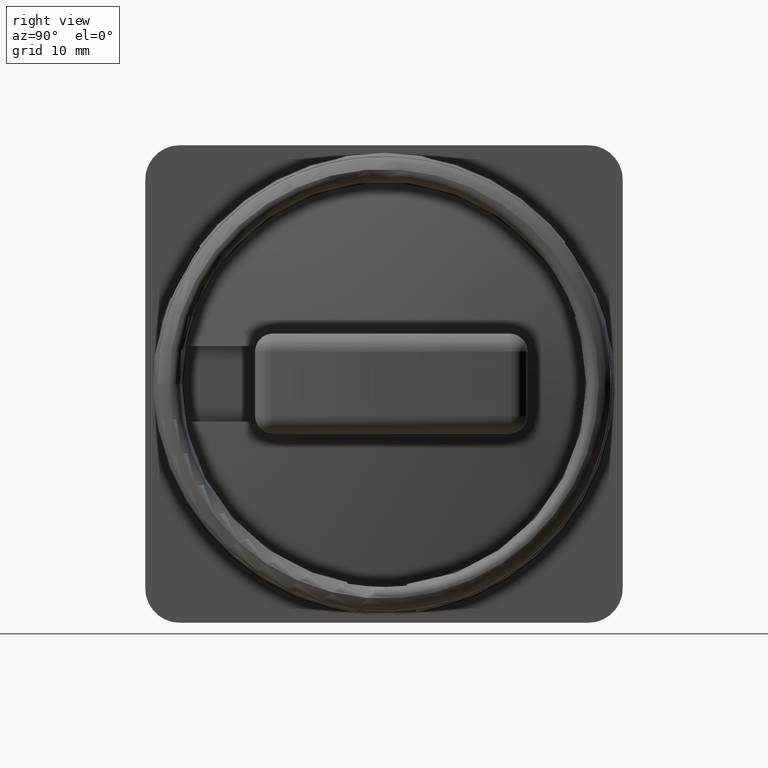
[diagram: clean part render]
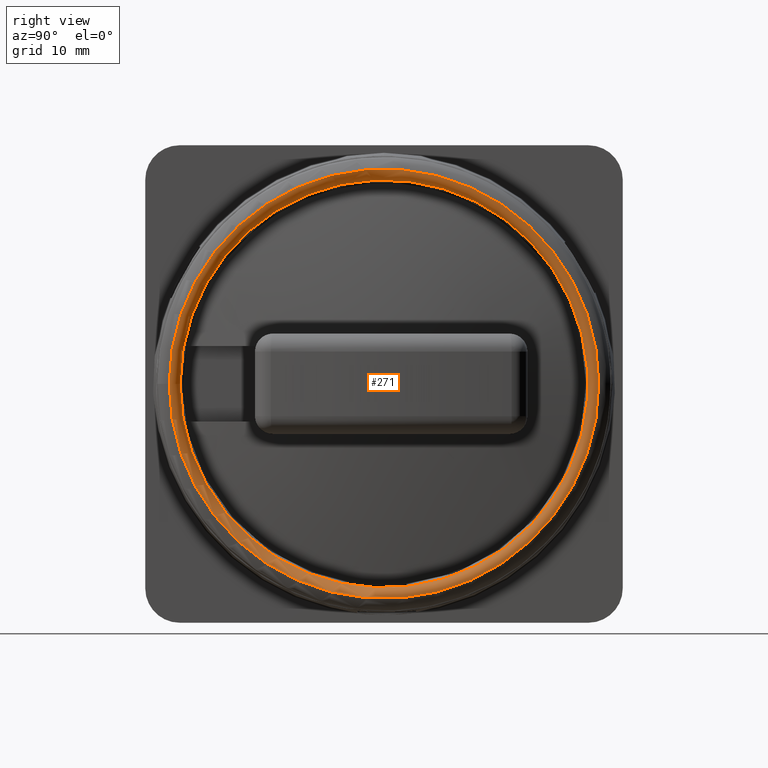
[diagram: same view with one face highlighted and labeled with its STEP entity id]
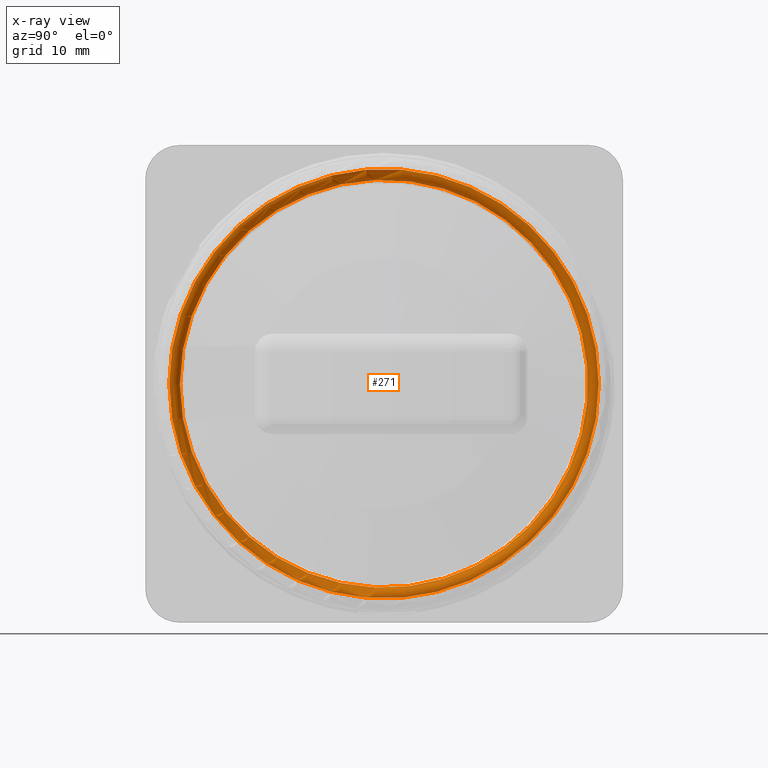
[diagram: x-ray of the same camera — body ghosted, the highlighted face saturated]
A machine part, right view. The second image highlights one B-rep face of the part: STEP entity #271.
The next image is the same camera in x-ray: the body ghosted, the highlighted face saturated — about 0% of this face is hidden behind the body in this view.
In plain terms, the highlighted toroidal blend (fillet) surface has major radius 23.7494 mm and minor (blend) radius 1 mm.
Its self-contained STEP definition (entity closure, byte-faithful):
#36=TOROIDAL_SURFACE('',#1714,23.7493908270191,0.999999999999999);
#271=ADVANCED_FACE('',(#381,#382),#36,.T.);
#381=FACE_BOUND('',#470,.T.);
#382=FACE_BOUND('',#471,.T.);
#470=EDGE_LOOP('',(#928));
#471=EDGE_LOOP('',(#929));
#558=CIRCLE('',#1698,22.75);
#565=CIRCLE('',#1712,23.9634988975199);
#928=ORIENTED_EDGE('',*,*,#1375,.T.);
#929=ORIENTED_EDGE('',*,*,#1384,.F.);
#1169=VERTEX_POINT('',#2961);
#1178=VERTEX_POINT('',#2986);
#1375=EDGE_CURVE('',#1169,#1169,#558,.T.);
#1384=EDGE_CURVE('',#1178,#1178,#565,.T.);
#1698=AXIS2_PLACEMENT_3D('',#2960,#2052,#2053);
#1712=AXIS2_PLACEMENT_3D('',#2985,#2082,#2083);
#1714=AXIS2_PLACEMENT_3D('',#2988,#2086,#2087);
#2052=DIRECTION('',(-0.999999999999995,-8.31535970370452E-010,-1.02954039982998E-007));
#2053=DIRECTION('',(8.31535695001461E-010,-1.,2.36455391286563E-009));
#2082=DIRECTION('',(-0.999999999999995,-8.31535970370452E-010,-1.02954039982998E-007));
#2083=DIRECTION('',(8.31535702519615E-010,-1.,2.36455369501968E-009));
#2086=DIRECTION('',(-0.999999999999995,-8.31535970370452E-010,-1.02954039982998E-007));
#2087=DIRECTION('',(-8.31535458165381E-010,1.,-2.36455372305836E-009));
#2960=CARTESIAN_POINT('',(90.239864031161,32.4954160879885,61.346058472977));
#2961=CARTESIAN_POINT('',(90.2398640500785,9.74541608798854,61.3460585267706));
#2985=CARTESIAN_POINT('',(91.1817745129837,32.4954160887718,61.3460585699505));
#2986=CARTESIAN_POINT('',(91.1817745329102,8.53191719125197,61.3460586266135));
#2988=CARTESIAN_POINT('',(90.2049645344585,32.4954160879595,61.346058469384));